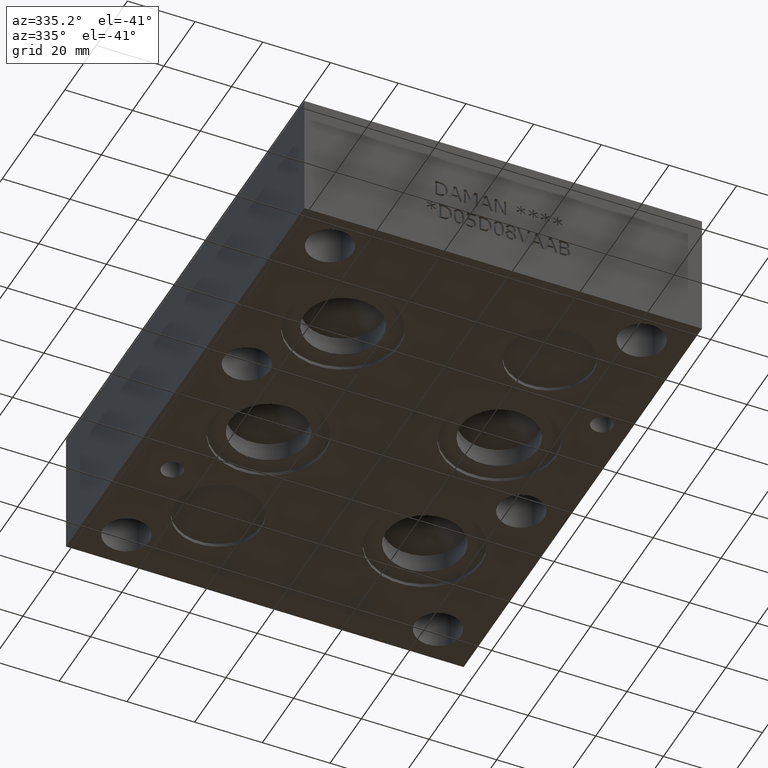
[diagram: clean part render]
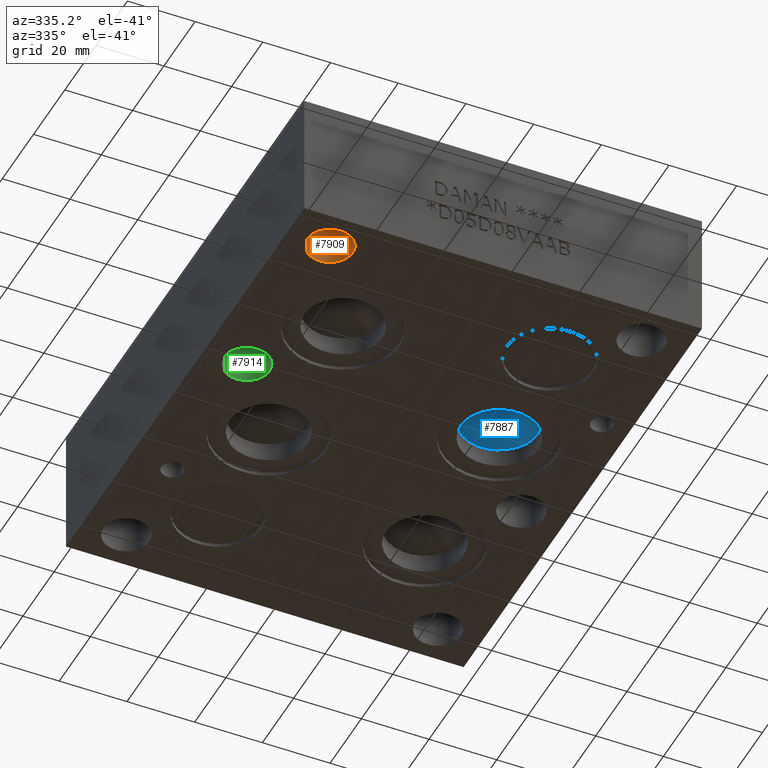
[diagram: same view with three faces highlighted in distinct colors, each labeled with its STEP entity id]
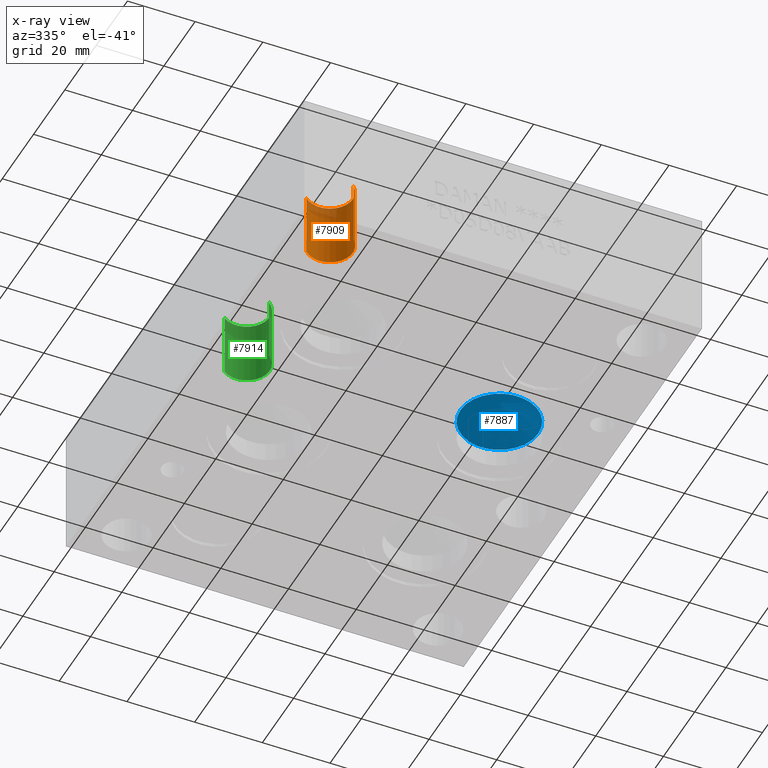
[diagram: x-ray of the same camera — body ghosted, the three highlighted faces saturated]
A machine part, auxiliary view with three faces highlighted in distinct colors.
The next image is the same camera in x-ray (body ghosted, the three faces saturated) — at least one of them is partly hidden behind the body in this view.
Their STEP definitions:

[orange] entity #7909 — the highlighted cylindrical surface (edge-blend (fillet) strip) has radius 6.7437 mm, axis along (0, 0, -1).
#32=CIRCLE('',#8196,6.7437);
#86=CIRCLE('',#8267,6.7437);
#188=CYLINDRICAL_SURFACE('',#8325,6.7437);
#931=FACE_OUTER_BOUND('',#1391,.T.);
#1391=EDGE_LOOP('',(#6789,#6790,#6791,#6792));
#2142=LINE('',#13090,#2904);
#2143=LINE('',#13094,#2905);
#2904=VECTOR('',#9570,10.);
#2905=VECTOR('',#9573,10.);
#3560=VERTEX_POINT('',#13088);
#3561=VERTEX_POINT('',#13089);
#3562=VERTEX_POINT('',#13091);
#3563=VERTEX_POINT('',#13093);
#4600=EDGE_CURVE('',#3560,#3561,#2142,.T.);
#4602=EDGE_CURVE('',#3563,#3562,#2143,.T.);
#4606=EDGE_CURVE('',#3562,#3560,#32,.T.);
#4679=EDGE_CURVE('',#3563,#3561,#86,.T.);
#6789=ORIENTED_EDGE('',*,*,#4600,.T.);
#6790=ORIENTED_EDGE('',*,*,#4679,.F.);
#6791=ORIENTED_EDGE('',*,*,#4602,.T.);
#6792=ORIENTED_EDGE('',*,*,#4606,.T.);
#7909=ADVANCED_FACE('',(#931),#188,.F.);
#8196=AXIS2_PLACEMENT_3D('',#13101,#9582,#9583);
#8267=AXIS2_PLACEMENT_3D('',#13251,#9743,#9744);
#8325=AXIS2_PLACEMENT_3D('',#13361,#9877,#9878);
#9570=DIRECTION('',(0.,0.,-1.));
#9573=DIRECTION('',(0.,0.,1.));
#9582=DIRECTION('center_axis',(0.,0.,1.));
#9583=DIRECTION('ref_axis',(1.,0.,0.));
#9743=DIRECTION('center_axis',(0.,0.,1.));
#9744=DIRECTION('ref_axis',(1.,0.,0.));
#9877=DIRECTION('center_axis',(0.,0.,-1.));
#9878=DIRECTION('ref_axis',(1.,0.,0.));
#13088=CARTESIAN_POINT('',(7.93783822770376,15.8873617722904,19.05));
#13089=CARTESIAN_POINT('',(7.93783822770376,15.8873617722904,0.));
#13090=CARTESIAN_POINT('',(7.93783822770376,15.8873617722904,-158.057451107522));
#13091=CARTESIAN_POINT('',(17.4748617722962,6.3503382277096,19.05));
#13093=CARTESIAN_POINT('',(17.4748617722962,6.3503382277096,0.));
#13094=CARTESIAN_POINT('',(17.4748617722962,6.3503382277096,-158.057451107522));
#13101=CARTESIAN_POINT('Origin',(12.7127,11.1252,19.05));
#13251=CARTESIAN_POINT('Origin',(12.7127,11.1252,0.));
#13361=CARTESIAN_POINT('Origin',(12.7127,11.1252,196.157451107522));

[blue] entity #7887 — the highlighted conical surface has half-angle 60 deg.
#15=CONICAL_SURFACE('',#8278,5.7531,1.0471975511966);
#95=CIRCLE('',#8279,11.5062);
#96=CIRCLE('',#8280,11.5062);
#909=FACE_OUTER_BOUND('',#1365,.T.);
#1365=EDGE_LOOP('',(#6690,#6691,#6692,#6693));
#2165=LINE('',#13273,#2927);
#2927=VECTOR('',#9771,5.7531);
#3630=VERTEX_POINT('',#13269);
#3631=VERTEX_POINT('',#13270);
#3632=VERTEX_POINT('',#13272);
#4690=EDGE_CURVE('',#3630,#3631,#95,.T.);
#4691=EDGE_CURVE('',#3631,#3632,#2165,.T.);
#4692=EDGE_CURVE('',#3631,#3630,#96,.T.);
#6690=ORIENTED_EDGE('',*,*,#4690,.T.);
#6691=ORIENTED_EDGE('',*,*,#4691,.T.);
#6692=ORIENTED_EDGE('',*,*,#4691,.F.);
#6693=ORIENTED_EDGE('',*,*,#4692,.T.);
#7887=ADVANCED_FACE('',(#909),#15,.F.);
#8278=AXIS2_PLACEMENT_3D('',#13268,#9767,#9768);
#8279=AXIS2_PLACEMENT_3D('',#13271,#9769,#9770);
#8280=AXIS2_PLACEMENT_3D('',#13274,#9772,#9773);
#9767=DIRECTION('center_axis',(0.,0.,-1.));
#9768=DIRECTION('ref_axis',(1.,0.,0.));
#9769=DIRECTION('center_axis',(0.,0.,-1.));
#9770=DIRECTION('ref_axis',(1.,0.,0.));
#9771=DIRECTION('',(0.866025403784439,-1.06057523872491E-16,0.5));
#9772=DIRECTION('center_axis',(0.,0.,-1.));
#9773=DIRECTION('ref_axis',(1.,0.,0.));
#13268=CARTESIAN_POINT('Origin',(87.3252,64.3128,9.96466383367484));
#13269=CARTESIAN_POINT('',(98.8314,64.3128,6.64311));
#13270=CARTESIAN_POINT('',(75.819,64.3128,6.64311));
#13271=CARTESIAN_POINT('Origin',(87.3252,64.3128,6.64311));
#13272=CARTESIAN_POINT('',(87.3252,64.3128,13.2862176673497));
#13273=CARTESIAN_POINT('',(81.5721,64.3128,9.96466383367484));
#13274=CARTESIAN_POINT('Origin',(87.3252,64.3128,6.64311));

[green] entity #7914 — the highlighted cylindrical surface (edge-blend (fillet) strip) has radius 6.7437 mm, axis along (0, 0, -1).
#67=CIRCLE('',#8246,6.7437);
#91=CIRCLE('',#8272,6.7437);
#193=CYLINDRICAL_SURFACE('',#8330,6.7437);
#936=FACE_OUTER_BOUND('',#1396,.T.);
#1396=EDGE_LOOP('',(#6809,#6810,#6811,#6812));
#2157=LINE('',#13195,#2919);
#2158=LINE('',#13199,#2920);
#2919=VECTOR('',#9685,10.);
#2920=VECTOR('',#9688,10.);
#3600=VERTEX_POINT('',#13193);
#3601=VERTEX_POINT('',#13194);
#3602=VERTEX_POINT('',#13196);
#3603=VERTEX_POINT('',#13198);
#4650=EDGE_CURVE('',#3600,#3601,#2157,.T.);
#4652=EDGE_CURVE('',#3603,#3602,#2158,.T.);
#4656=EDGE_CURVE('',#3602,#3600,#67,.T.);
#4684=EDGE_CURVE('',#3603,#3601,#91,.T.);
#6809=ORIENTED_EDGE('',*,*,#4650,.T.);
#6810=ORIENTED_EDGE('',*,*,#4684,.F.);
#6811=ORIENTED_EDGE('',*,*,#4652,.T.);
#6812=ORIENTED_EDGE('',*,*,#4656,.T.);
#7914=ADVANCED_FACE('',(#936),#193,.F.);
#8246=AXIS2_PLACEMENT_3D('',#13206,#9697,#9698);
#8272=AXIS2_PLACEMENT_3D('',#13256,#9753,#9754);
#8330=AXIS2_PLACEMENT_3D('',#13366,#9887,#9888);
#9685=DIRECTION('',(0.,0.,-1.));
#9688=DIRECTION('',(0.,0.,1.));
#9697=DIRECTION('center_axis',(0.,0.,1.));
#9698=DIRECTION('ref_axis',(1.,0.,0.));
#9753=DIRECTION('center_axis',(0.,0.,1.));
#9754=DIRECTION('ref_axis',(1.,0.,0.));
#9887=DIRECTION('center_axis',(0.,0.,-1.));
#9888=DIRECTION('ref_axis',(1.,0.,0.));
#13193=CARTESIAN_POINT('',(8.66649121117297,69.6982200517678,19.05));
#13194=CARTESIAN_POINT('',(8.66649121117297,69.6982200517678,0.));
#13195=CARTESIAN_POINT('',(8.66649121117297,69.6982200517678,-158.057451107522));
#13196=CARTESIAN_POINT('',(16.758908788827,58.9083299482322,19.05));
#13198=CARTESIAN_POINT('',(16.758908788827,58.9083299482322,0.));
#13199=CARTESIAN_POINT('',(16.758908788827,58.9083299482322,-158.057451107522));
#13206=CARTESIAN_POINT('Origin',(12.7254,64.3128,19.05));
#13256=CARTESIAN_POINT('Origin',(12.7254,64.3128,0.));
#13366=CARTESIAN_POINT('Origin',(12.7254,64.3128,196.157451107522));